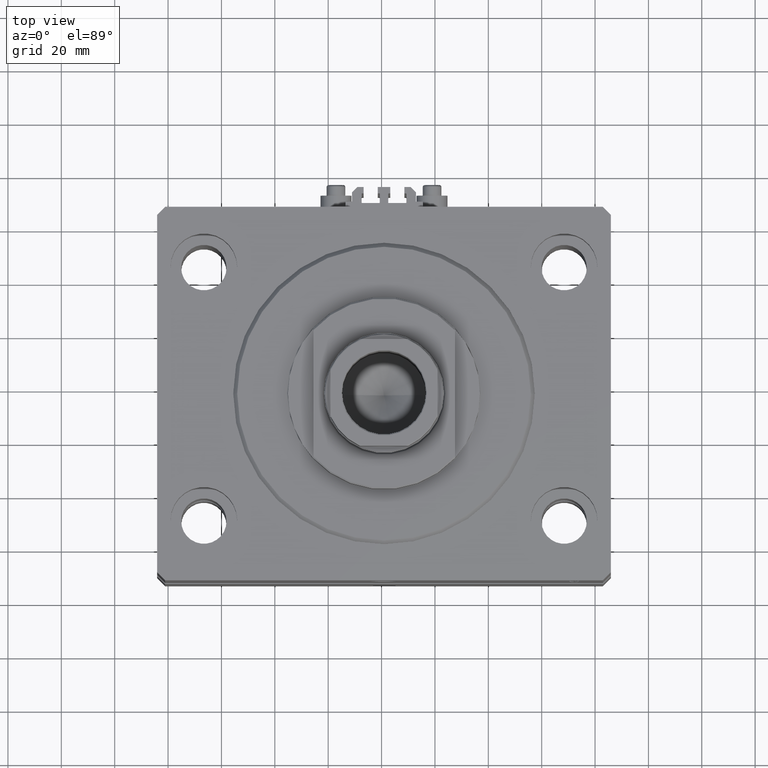
[diagram: clean part render]
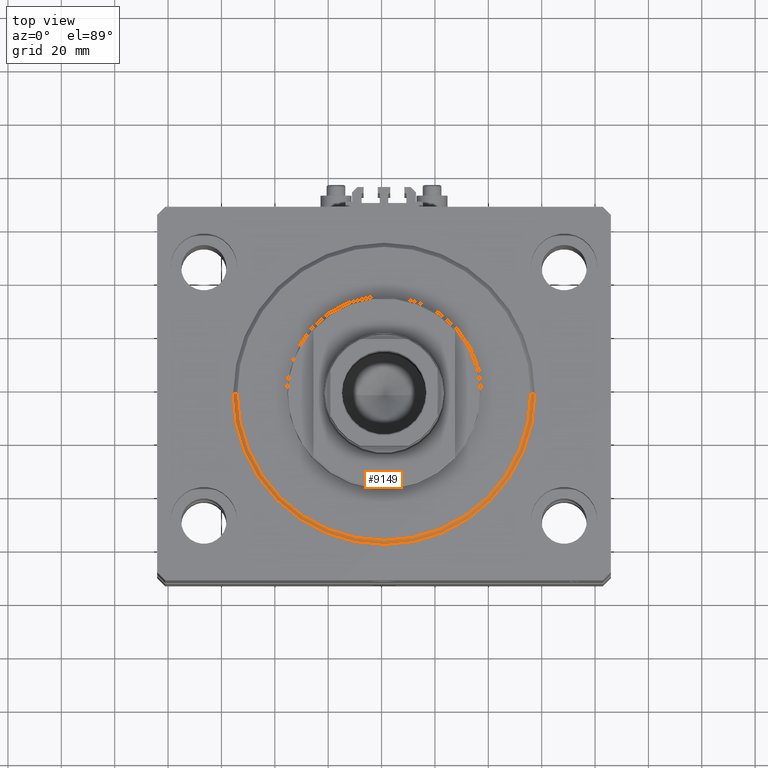
[diagram: same view with one face highlighted and labeled with its STEP entity id]
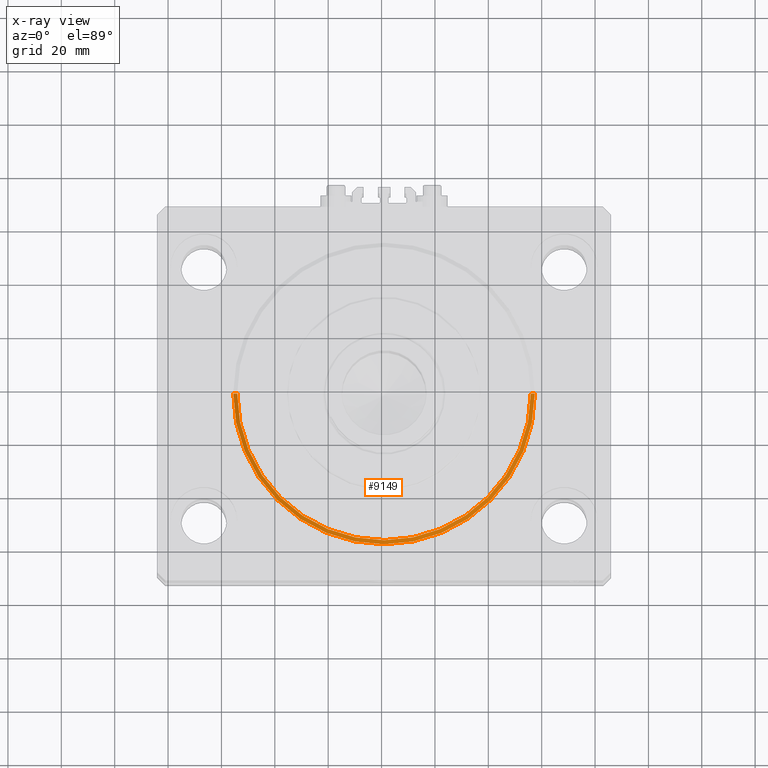
[diagram: x-ray of the same camera — body ghosted, the highlighted face saturated]
A machine part, top view. The second image highlights one B-rep face of the part: STEP entity #9149.
The next image is the same camera in x-ray: the body ghosted, the highlighted face saturated — about 0% of this face is hidden behind the body in this view.
In plain terms, the highlighted conical surface has half-angle 45 deg.
Its self-contained STEP definition (entity closure, byte-faithful):
#74 = ORIENTED_EDGE ( 'NONE', *, *, #14481, .F. ) ;
#1657 = DIRECTION ( 'NONE',  ( 0.7071067811865459074, 0.000000000000000000, 0.7071067811865491270 ) ) ;
#3788 = DIRECTION ( 'NONE',  ( -0.000000000000000000, -0.000000000000000000, 1.000000000000000000 ) ) ;
#6961 = ORIENTED_EDGE ( 'NONE', *, *, #29858, .T. ) ;
#7711 = DIRECTION ( 'NONE',  ( 1.000000000000000000, 0.000000000000000000, 0.000000000000000000 ) ) ;
#8142 = FACE_OUTER_BOUND ( 'NONE', #37062, .T. ) ;
#9149 = ADVANCED_FACE ( 'NONE', ( #8142 ), #28789, .T. ) ;
#9169 = CARTESIAN_POINT ( 'NONE',  ( 55.00000000000002132, 0.000000000000000000, 0.000000000000000000 ) ) ;
#12331 = AXIS2_PLACEMENT_3D ( 'NONE', #30493, #3788, #7711 ) ;
#12786 = CARTESIAN_POINT ( 'NONE',  ( 0.000000000000000000, 0.000000000000000000, 1.499999999999994449 ) ) ;
#12820 = VECTOR ( 'NONE', #1657, 1000.000000000000000 ) ;
#13635 = LINE ( 'NONE', #42795, #12820 ) ;
#14481 = EDGE_CURVE ( 'NONE', #48236, #19621, #27225, .T. ) ;
#14749 = VECTOR ( 'NONE', #31850, 1000.000000000000000 ) ;
#15876 = CARTESIAN_POINT ( 'NONE',  ( -56.50000000000000711, 0.000000000000000000, 1.499999999999994449 ) ) ;
#16896 = CARTESIAN_POINT ( 'NONE',  ( -56.50000000000000711, 6.919254415182546126E-15, 1.499999999999994449 ) ) ;
#19621 = VERTEX_POINT ( 'NONE', #15876 ) ;
#19910 = ORIENTED_EDGE ( 'NONE', *, *, #42520, .F. ) ;
#21653 = VERTEX_POINT ( 'NONE', #9169 ) ;
#22810 = VERTEX_POINT ( 'NONE', #37301 ) ;
#24498 = ORIENTED_EDGE ( 'NONE', *, *, #32632, .F. ) ;
#27225 = LINE ( 'NONE', #16896, #14749 ) ;
#27984 = CIRCLE ( 'NONE', #12331, 56.50000000000000711 ) ;
#28789 = CONICAL_SURFACE ( 'NONE', #45219, 56.50000000000000711, 0.7853981633974460586 ) ;
#29858 = EDGE_CURVE ( 'NONE', #21653, #22810, #13635, .T. ) ;
#30493 = CARTESIAN_POINT ( 'NONE',  ( 0.000000000000000000, 0.000000000000000000, 1.499999999999994449 ) ) ;
#30683 = DIRECTION ( 'NONE',  ( -0.000000000000000000, -0.000000000000000000, 1.000000000000000000 ) ) ;
#30957 = DIRECTION ( 'NONE',  ( 1.000000000000000000, 0.000000000000000000, 0.000000000000000000 ) ) ;
#31850 = DIRECTION ( 'NONE',  ( -0.7071067811865459074, 8.659560562354911904E-17, 0.7071067811865491270 ) ) ;
#32632 = EDGE_CURVE ( 'NONE', #21653, #48236, #41009, .T. ) ;
#36974 = CARTESIAN_POINT ( 'NONE',  ( -55.00000000000002132, 6.827405905246496343E-15, 0.000000000000000000 ) ) ;
#37062 = EDGE_LOOP ( 'NONE', ( #74, #24498, #6961, #19910 ) ) ;
#37301 = CARTESIAN_POINT ( 'NONE',  ( 56.50000000000000711, 6.919254415182546126E-15, 1.499999999999994449 ) ) ;
#41009 = CIRCLE ( 'NONE', #44131, 55.00000000000002132 ) ;
#41696 = DIRECTION ( 'NONE',  ( 1.000000000000000000, 0.000000000000000000, 0.000000000000000000 ) ) ;
#42520 = EDGE_CURVE ( 'NONE', #19621, #22810, #27984, .T. ) ;
#42795 = CARTESIAN_POINT ( 'NONE',  ( 56.50000000000000711, 0.000000000000000000, 1.499999999999994449 ) ) ;
#44131 = AXIS2_PLACEMENT_3D ( 'NONE', #46142, #45159, #30957 ) ;
#45159 = DIRECTION ( 'NONE',  ( -0.000000000000000000, -0.000000000000000000, -1.000000000000000000 ) ) ;
#45219 = AXIS2_PLACEMENT_3D ( 'NONE', #12786, #30683, #41696 ) ;
#46142 = CARTESIAN_POINT ( 'NONE',  ( 0.000000000000000000, 0.000000000000000000, 0.000000000000000000 ) ) ;
#48236 = VERTEX_POINT ( 'NONE', #36974 ) ;